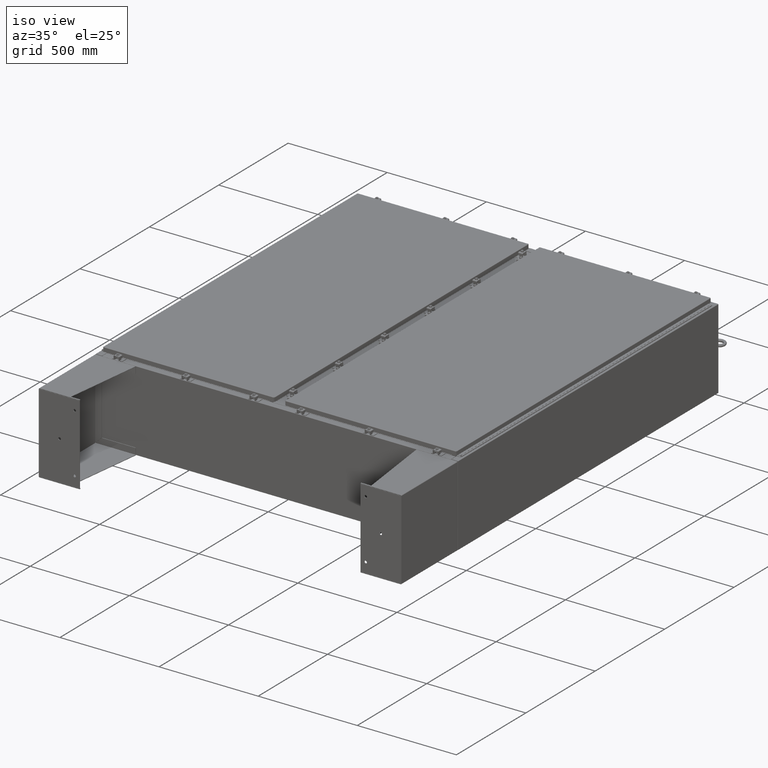
[diagram: clean part render]
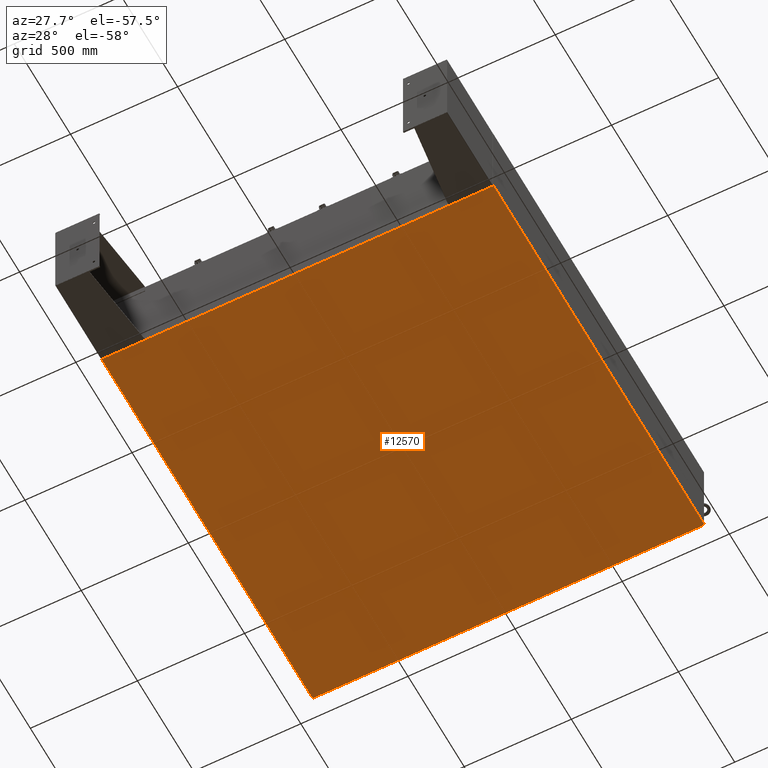
[diagram: tour spotlight — one face highlighted and labeled with its STEP entity id]
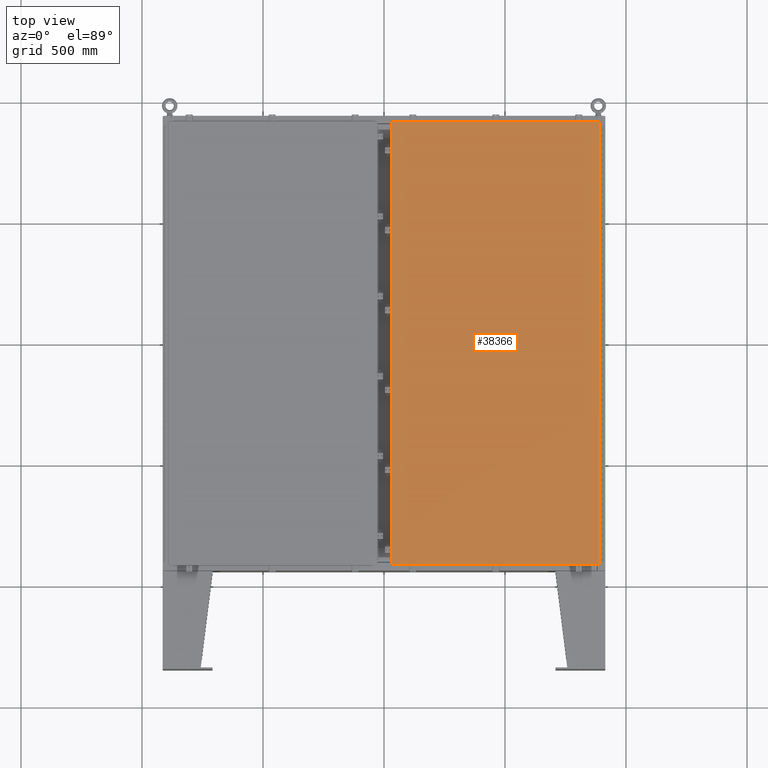
[diagram: tour spotlight — one face highlighted and labeled with its STEP entity id]
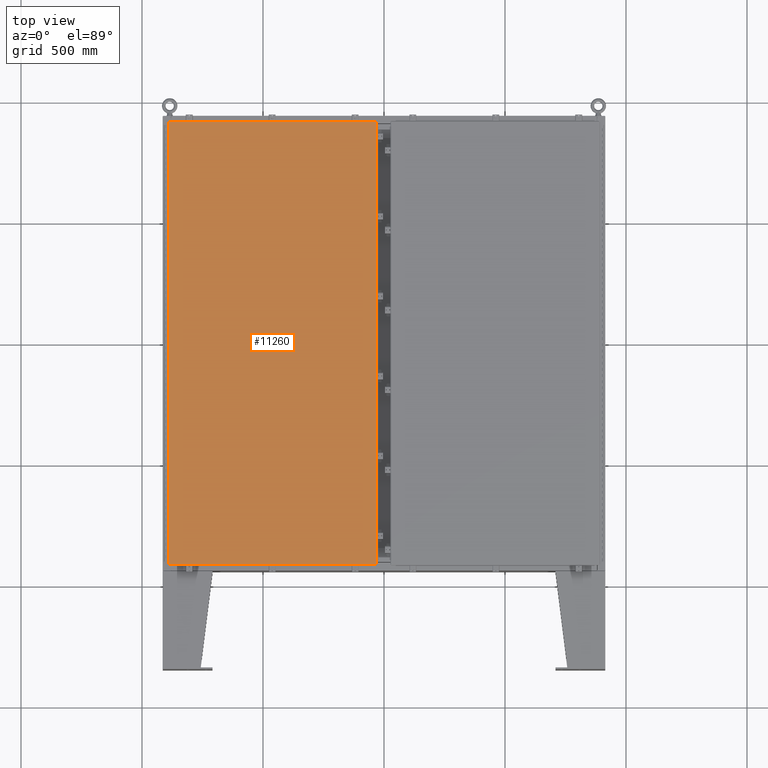
[diagram: tour spotlight — one face highlighted and labeled with its STEP entity id]
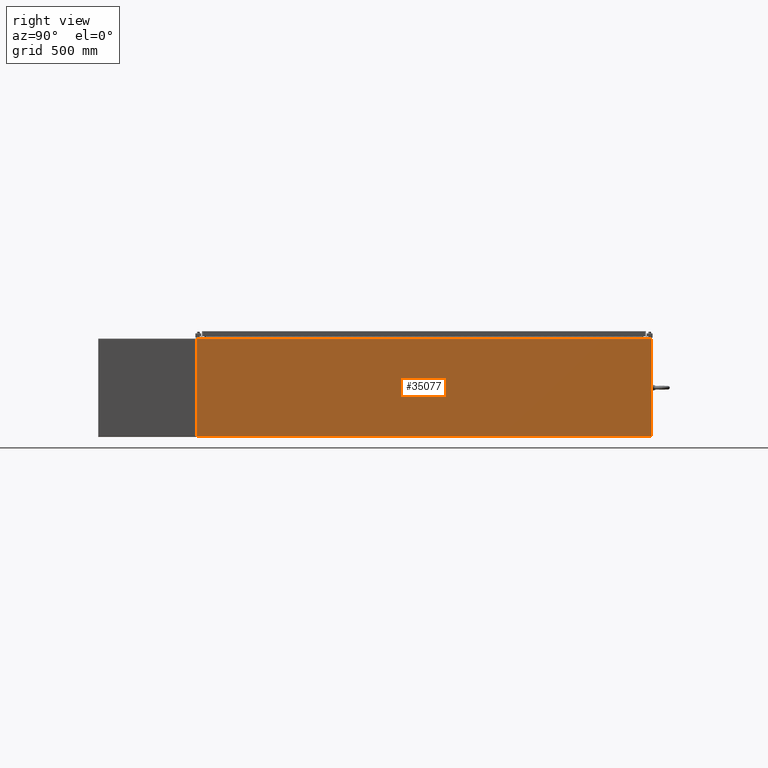
[diagram: tour spotlight — one face highlighted and labeled with its STEP entity id]
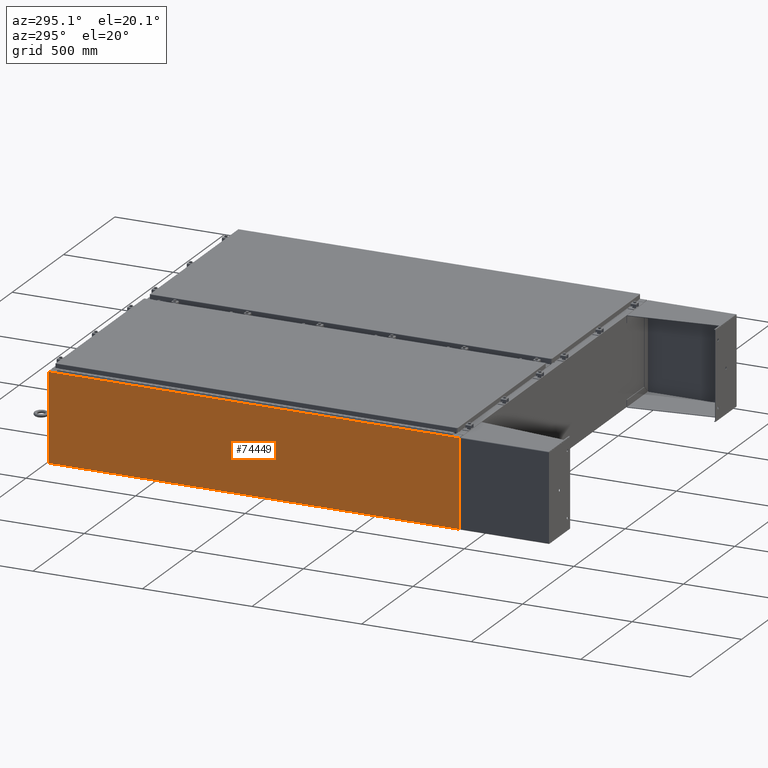
[diagram: tour spotlight — one face highlighted and labeled with its STEP entity id]
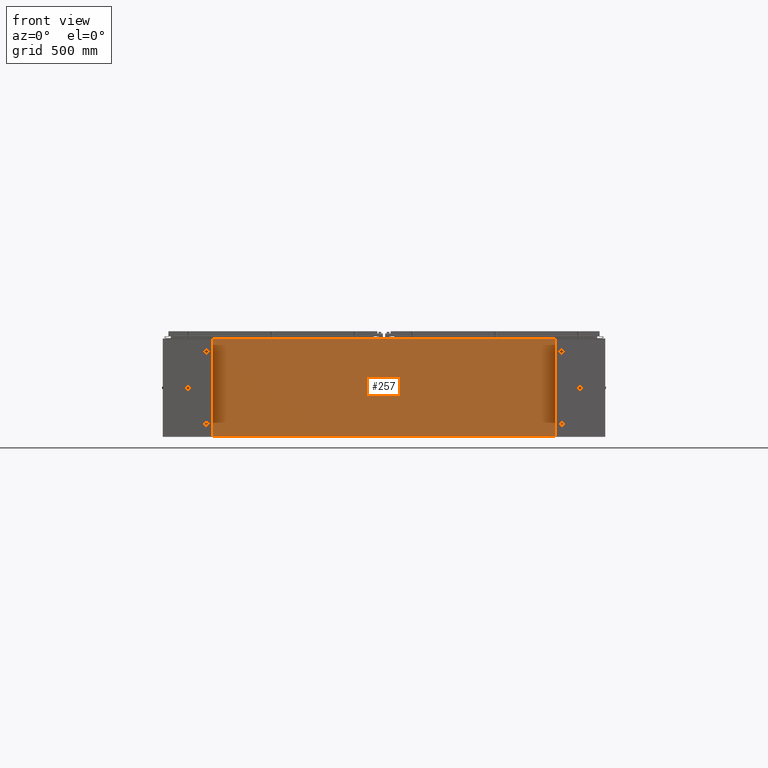
[diagram: tour spotlight — one face highlighted and labeled with its STEP entity id]
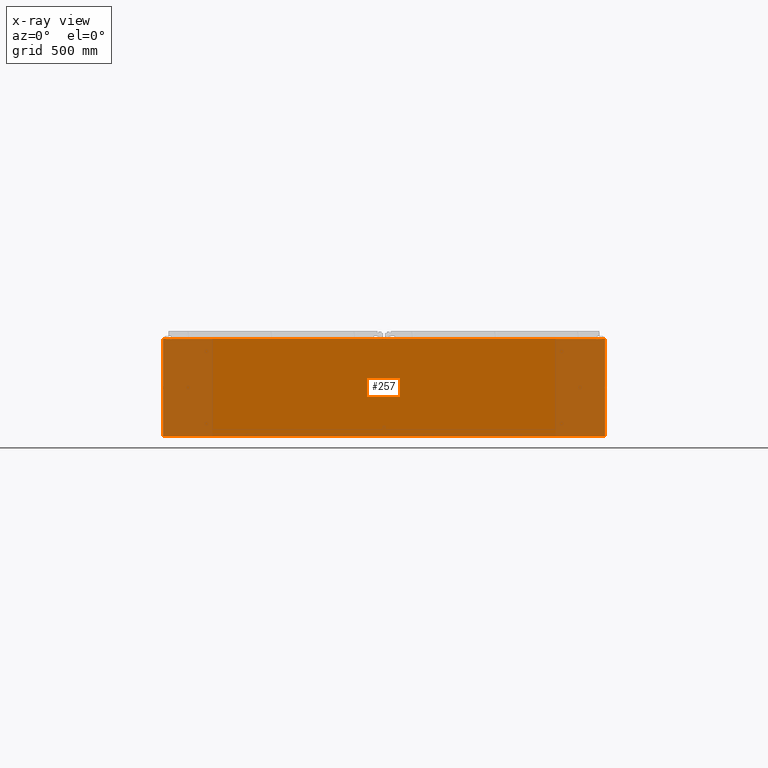
[diagram: x-ray of the same camera — body ghosted, this tour face saturated]
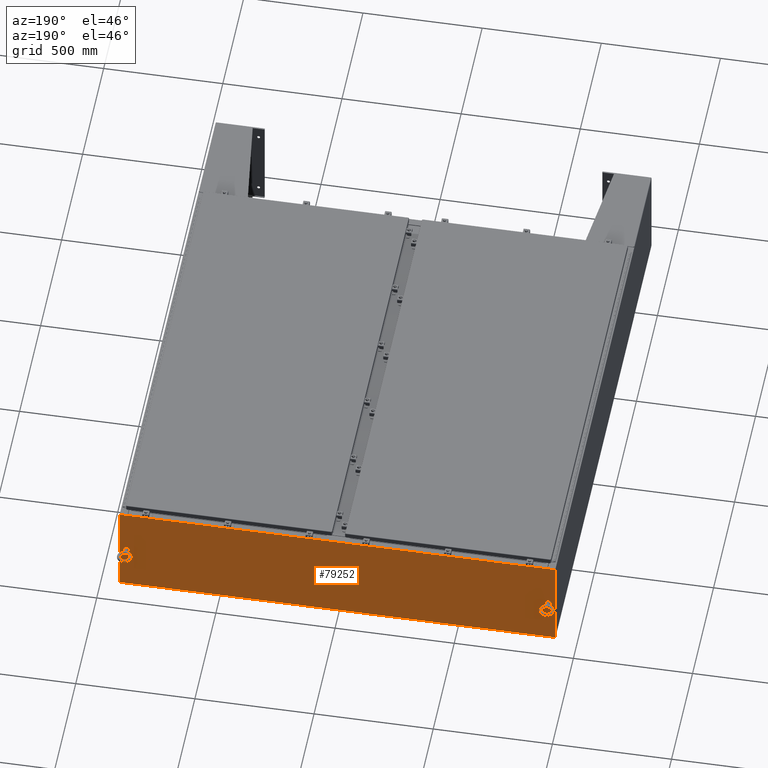
[diagram: tour spotlight — one face highlighted and labeled with its STEP entity id]
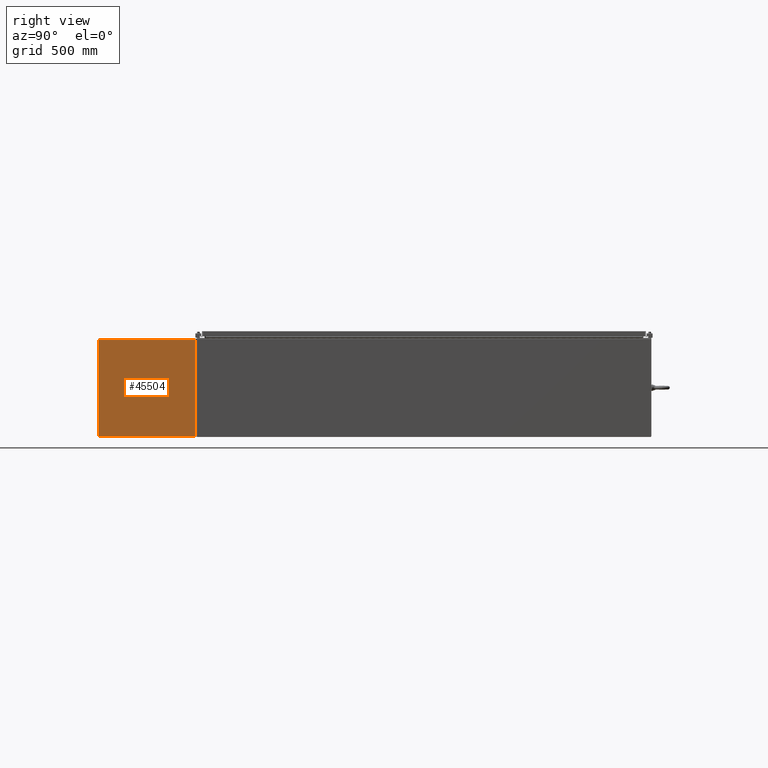
[diagram: tour spotlight — one face highlighted and labeled with its STEP entity id]
A machine part: a face-by-face anatomy tour. The part has 7640 B-rep faces; the first image is the clean iso view, then the 8 largest visible faces are spotlighted one at a time (largest first), each with its STEP entity span.

Face 1 — auxiliary view, entity #12570. In plain terms, the highlighted planar face has unit normal (0, 0, -1).
Definition (entity closure, byte-faithful):
#3493 = EDGE_CURVE ( 'NONE', #23384, #54898, #8824, .T. ) ;
#3610 = ORIENTED_EDGE ( 'NONE', *, *, #64631, .F. ) ;
#8824 = LINE ( 'NONE', #56169, #36478 ) ;
#10795 = EDGE_CURVE ( 'NONE', #66061, #54898, #27178, .T. ) ;
#12570 = ADVANCED_FACE ( 'NONE', ( #16072 ), #39025, .T. ) ;
#13029 = VECTOR ( 'NONE', #21981, 39.37007874015748100 ) ;
#15867 = DIRECTION ( 'NONE',  ( -1.000000000000000000, -0.0000000000000000000, -0.0000000000000000000 ) ) ;
#16072 = FACE_OUTER_BOUND ( 'NONE', #42501, .T. ) ;
#17949 = CARTESIAN_POINT ( 'NONE',  ( -35.91229999999999500, 36.92529999999999300, -0.07470000000000000300 ) ) ;
#19491 = CARTESIAN_POINT ( 'NONE',  ( 35.91230000000001600, 36.92529999999999300, -0.07469999999999994700 ) ) ;
#21643 = ORIENTED_EDGE ( 'NONE', *, *, #10795, .F. ) ;
#21981 = DIRECTION ( 'NONE',  ( 1.000000000000000000, 0.0000000000000000000, 0.0000000000000000000 ) ) ;
#23384 = VERTEX_POINT ( 'NONE', #65533 ) ;
#24544 = DIRECTION ( 'NONE',  ( 0.0000000000000000000, 0.0000000000000000000, -1.000000000000000000 ) ) ;
#27178 = LINE ( 'NONE', #76754, #58713 ) ;
#29747 = AXIS2_PLACEMENT_3D ( 'NONE', #53732, #24544, #47712 ) ;
#32375 = LINE ( 'NONE', #19491, #80545 ) ;
#33356 = ORIENTED_EDGE ( 'NONE', *, *, #3493, .T. ) ;
#35234 = CARTESIAN_POINT ( 'NONE',  ( 35.91230000000001600, 36.92529999999999300, -0.07469999999999994700 ) ) ;
#36478 = VECTOR ( 'NONE', #64100, 39.37007874015748100 ) ;
#39025 = PLANE ( 'NONE',  #29747 ) ;
#40136 = CARTESIAN_POINT ( 'NONE',  ( 35.91230000000001600, -36.92530000000000000, -0.07470000000000000300 ) ) ;
#40699 = CARTESIAN_POINT ( 'NONE',  ( -35.99999999999998600, -36.92530000000000000, -0.07470000000000000300 ) ) ;
#42501 = EDGE_LOOP ( 'NONE', ( #3610, #33356, #21643, #73853 ) ) ;
#47712 = DIRECTION ( 'NONE',  ( -1.000000000000000000, 0.0000000000000000000, -0.0000000000000000000 ) ) ;
#48517 = LINE ( 'NONE', #40699, #13029 ) ;
#53732 = CARTESIAN_POINT ( 'NONE',  ( 0.0000000000000000000, 0.0000000000000000000, -0.07470000000000000300 ) ) ;
#54898 = VERTEX_POINT ( 'NONE', #17949 ) ;
#56169 = CARTESIAN_POINT ( 'NONE',  ( -35.91229999999999500, -36.92529999999999300, -0.07469999999999994700 ) ) ;
#57142 = DIRECTION ( 'NONE',  ( -0.0000000000000000000, -1.000000000000000000, -0.0000000000000000000 ) ) ;
#58713 = VECTOR ( 'NONE', #15867, 39.37007874015748100 ) ;
#59876 = VERTEX_POINT ( 'NONE', #40136 ) ;
#64100 = DIRECTION ( 'NONE',  ( -0.0000000000000000000, 1.000000000000000000, -0.0000000000000000000 ) ) ;
#64631 = EDGE_CURVE ( 'NONE', #23384, #59876, #48517, .T. ) ;
#65533 = CARTESIAN_POINT ( 'NONE',  ( -35.91229999999999500, -36.92529999999999300, -0.07469999999999994700 ) ) ;
#66061 = VERTEX_POINT ( 'NONE', #35234 ) ;
#72785 = EDGE_CURVE ( 'NONE', #66061, #59876, #32375, .T. ) ;
#73853 = ORIENTED_EDGE ( 'NONE', *, *, #72785, .T. ) ;
#76754 = CARTESIAN_POINT ( 'NONE',  ( -35.99999999999998600, 36.92530000000000000, -0.07470000000000000300 ) ) ;
#80545 = VECTOR ( 'NONE', #57142, 39.37007874015748100 ) ;

Face 2 — top view, entity #38366. In plain terms, the highlighted planar face has unit normal (0, 0, -1).
Definition (entity closure, byte-faithful):
#2172 = EDGE_CURVE ( 'NONE', #34363, #64235, #79572, .T. ) ;
#3271 = CARTESIAN_POINT ( 'NONE',  ( -16.91780000000000000, -36.01820000000000000, 2.185478394931410600E-015 ) ) ;
#3979 = CARTESIAN_POINT ( 'NONE',  ( 16.91780000000000300, -36.01820000000000000, 0.0000000000000000000 ) ) ;
#5596 = DIRECTION ( 'NONE',  ( -1.000000000000000000, 0.0000000000000000000, -0.0000000000000000000 ) ) ;
#5692 = DIRECTION ( 'NONE',  ( 0.0000000000000000000, 0.0000000000000000000, -1.000000000000000000 ) ) ;
#5871 = CARTESIAN_POINT ( 'NONE',  ( 0.0000000000000000000, 0.0000000000000000000, 0.0000000000000000000 ) ) ;
#6145 = PLANE ( 'NONE',  #6263 ) ;
#6167 = CARTESIAN_POINT ( 'NONE',  ( -16.91780000000000000, -36.01820000000000000, 2.185478394931410600E-015 ) ) ;
#6263 = AXIS2_PLACEMENT_3D ( 'NONE', #5871, #5692, #5596 ) ;
#9368 = EDGE_CURVE ( 'NONE', #64235, #66268, #70761, .T. ) ;
#12690 = EDGE_LOOP ( 'NONE', ( #39195, #13293, #30516, #52504 ) ) ;
#13282 = CARTESIAN_POINT ( 'NONE',  ( 16.91780000000000000, 36.01820000000000000, 2.185478394931410600E-015 ) ) ;
#13293 = ORIENTED_EDGE ( 'NONE', *, *, #57177, .T. ) ;
#14905 = DIRECTION ( 'NONE',  ( 0.0000000000000000000, -1.000000000000000000, 0.0000000000000000000 ) ) ;
#15107 = EDGE_CURVE ( 'NONE', #66268, #42173, #77315, .T. ) ;
#16121 = DIRECTION ( 'NONE',  ( 1.000000000000000000, -0.0000000000000000000, -0.0000000000000000000 ) ) ;
#16813 = LINE ( 'NONE', #49216, #79779 ) ;
#27017 = VECTOR ( 'NONE', #16121, 39.37007874015748100 ) ;
#30042 = CARTESIAN_POINT ( 'NONE',  ( -16.91780000000000300, 36.01820000000000000, 0.0000000000000000000 ) ) ;
#30516 = ORIENTED_EDGE ( 'NONE', *, *, #2172, .T. ) ;
#31376 = CARTESIAN_POINT ( 'NONE',  ( -16.91780000000000300, 36.01820000000000000, 0.0000000000000000000 ) ) ;
#34363 = VERTEX_POINT ( 'NONE', #13282 ) ;
#38366 = ADVANCED_FACE ( 'NONE', ( #67235 ), #6145, .F. ) ;
#39115 = DIRECTION ( 'NONE',  ( -1.000000000000000000, -0.0000000000000000000, -0.0000000000000000000 ) ) ;
#39180 = CARTESIAN_POINT ( 'NONE',  ( 16.91780000000000000, 36.01820000000000000, 2.185478394931410600E-015 ) ) ;
#39195 = ORIENTED_EDGE ( 'NONE', *, *, #15107, .T. ) ;
#42173 = VERTEX_POINT ( 'NONE', #3979 ) ;
#49216 = CARTESIAN_POINT ( 'NONE',  ( 16.91780000000000300, -36.01820000000000000, 0.0000000000000000000 ) ) ;
#52504 = ORIENTED_EDGE ( 'NONE', *, *, #9368, .T. ) ;
#53825 = VECTOR ( 'NONE', #14905, 39.37007874015748100 ) ;
#55760 = DIRECTION ( 'NONE',  ( 0.0000000000000000000, 1.000000000000000000, 0.0000000000000000000 ) ) ;
#57177 = EDGE_CURVE ( 'NONE', #42173, #34363, #16813, .T. ) ;
#64235 = VERTEX_POINT ( 'NONE', #30042 ) ;
#66268 = VERTEX_POINT ( 'NONE', #6167 ) ;
#67235 = FACE_OUTER_BOUND ( 'NONE', #12690, .T. ) ;
#70761 = LINE ( 'NONE', #31376, #53825 ) ;
#77315 = LINE ( 'NONE', #3271, #27017 ) ;
#77591 = VECTOR ( 'NONE', #39115, 39.37007874015748100 ) ;
#79572 = LINE ( 'NONE', #39180, #77591 ) ;
#79779 = VECTOR ( 'NONE', #55760, 39.37007874015748100 ) ;

Face 3 — top view, entity #11260. In plain terms, the highlighted planar face has unit normal (0, 0, -1).
Definition (entity closure, byte-faithful):
#705 = CARTESIAN_POINT ( 'NONE',  ( 0.0000000000000000000, 0.0000000000000000000, 0.0000000000000000000 ) ) ;
#1235 = LINE ( 'NONE', #78721, #66480 ) ;
#1942 = VERTEX_POINT ( 'NONE', #81654 ) ;
#5646 = VECTOR ( 'NONE', #34307, 39.37007874015748100 ) ;
#7643 = VERTEX_POINT ( 'NONE', #41279 ) ;
#10863 = LINE ( 'NONE', #54415, #42395 ) ;
#11260 = ADVANCED_FACE ( 'NONE', ( #73491 ), #29335, .F. ) ;
#11493 = CARTESIAN_POINT ( 'NONE',  ( -16.91780000000000000, 36.01820000000000000, 0.0000000000000000000 ) ) ;
#14839 = DIRECTION ( 'NONE',  ( -1.000000000000000000, -0.0000000000000000000, -0.0000000000000000000 ) ) ;
#15990 = DIRECTION ( 'NONE',  ( 0.0000000000000000000, -1.000000000000000000, 0.0000000000000000000 ) ) ;
#19330 = EDGE_CURVE ( 'NONE', #1942, #37925, #55998, .T. ) ;
#21247 = EDGE_LOOP ( 'NONE', ( #80827, #80230, #45527, #74217 ) ) ;
#21991 = VECTOR ( 'NONE', #14839, 39.37007874015748100 ) ;
#24380 = CARTESIAN_POINT ( 'NONE',  ( 16.91780000000000300, -36.01820000000000000, 0.0000000000000000000 ) ) ;
#29335 = PLANE ( 'NONE',  #72982 ) ;
#34307 = DIRECTION ( 'NONE',  ( 1.000000000000000000, -0.0000000000000000000, -0.0000000000000000000 ) ) ;
#34502 = CARTESIAN_POINT ( 'NONE',  ( -16.91780000000000000, -36.01820000000000000, 2.185478394931410600E-015 ) ) ;
#36774 = LINE ( 'NONE', #46187, #21991 ) ;
#37925 = VERTEX_POINT ( 'NONE', #24380 ) ;
#41279 = CARTESIAN_POINT ( 'NONE',  ( 16.91780000000000300, 36.01820000000000000, 2.185478394931410600E-015 ) ) ;
#42395 = VECTOR ( 'NONE', #73806, 39.37007874015748100 ) ;
#44180 = EDGE_CURVE ( 'NONE', #37925, #7643, #10863, .T. ) ;
#45527 = ORIENTED_EDGE ( 'NONE', *, *, #52857, .T. ) ;
#46187 = CARTESIAN_POINT ( 'NONE',  ( 16.91780000000000300, 36.01820000000000000, 2.185478394931410600E-015 ) ) ;
#52444 = EDGE_CURVE ( 'NONE', #79877, #1942, #1235, .T. ) ;
#52857 = EDGE_CURVE ( 'NONE', #7643, #79877, #36774, .T. ) ;
#54415 = CARTESIAN_POINT ( 'NONE',  ( 16.91780000000000300, -36.01820000000000000, 0.0000000000000000000 ) ) ;
#55679 = DIRECTION ( 'NONE',  ( 0.0000000000000000000, 0.0000000000000000000, -1.000000000000000000 ) ) ;
#55998 = LINE ( 'NONE', #34502, #5646 ) ;
#66480 = VECTOR ( 'NONE', #15990, 39.37007874015748100 ) ;
#72982 = AXIS2_PLACEMENT_3D ( 'NONE', #705, #55679, #77569 ) ;
#73491 = FACE_OUTER_BOUND ( 'NONE', #21247, .T. ) ;
#73806 = DIRECTION ( 'NONE',  ( 0.0000000000000000000, 1.000000000000000000, 0.0000000000000000000 ) ) ;
#74217 = ORIENTED_EDGE ( 'NONE', *, *, #52444, .T. ) ;
#77569 = DIRECTION ( 'NONE',  ( -1.000000000000000000, 0.0000000000000000000, -0.0000000000000000000 ) ) ;
#78721 = CARTESIAN_POINT ( 'NONE',  ( -16.91780000000000000, 36.01820000000000000, 0.0000000000000000000 ) ) ;
#79877 = VERTEX_POINT ( 'NONE', #11493 ) ;
#80230 = ORIENTED_EDGE ( 'NONE', *, *, #44180, .T. ) ;
#80827 = ORIENTED_EDGE ( 'NONE', *, *, #19330, .T. ) ;
#81654 = CARTESIAN_POINT ( 'NONE',  ( -16.91780000000000000, -36.01820000000000000, 2.185478394931410600E-015 ) ) ;

Face 4 — right view, entity #35077. In plain terms, the highlighted planar face has unit normal (-1, -0, 0).
Definition (entity closure, byte-faithful):
#3249 = CARTESIAN_POINT ( 'NONE',  ( 36.00000000000008500, 36.92530000000000000, 15.83760000000000400 ) ) ;
#4414 = DIRECTION ( 'NONE',  ( 3.584876173029203700E-015, 2.757597056176310300E-016, 1.000000000000000000 ) ) ;
#6287 = DIRECTION ( 'NONE',  ( 1.060880944049164600E-031, -1.000000000000000000, -3.704046018881944000E-046 ) ) ;
#13245 = CARTESIAN_POINT ( 'NONE',  ( 36.00000000000008500, 36.92529999999999300, 15.83760000000000400 ) ) ;
#16216 = ORIENTED_EDGE ( 'NONE', *, *, #64815, .T. ) ;
#24065 = EDGE_CURVE ( 'NONE', #44461, #46632, #37822, .T. ) ;
#29084 = VERTEX_POINT ( 'NONE', #49798 ) ;
#33735 = CARTESIAN_POINT ( 'NONE',  ( 36.00000000000000700, 36.92529999999999300, -1.394988657429056600E-013 ) ) ;
#33974 = FACE_OUTER_BOUND ( 'NONE', #41923, .T. ) ;
#34113 = AXIS2_PLACEMENT_3D ( 'NONE', #48304, #46976, #46894 ) ;
#35077 = ADVANCED_FACE ( 'NONE', ( #33974 ), #47819, .F. ) ;
#35829 = VECTOR ( 'NONE', #4414, 39.37007874015748100 ) ;
#37396 = DIRECTION ( 'NONE',  ( -3.584876173029203700E-015, 2.757597056176310700E-016, -1.000000000000000000 ) ) ;
#37822 = LINE ( 'NONE', #33735, #35829 ) ;
#41416 = VECTOR ( 'NONE', #6287, 39.37007874015748100 ) ;
#41923 = EDGE_LOOP ( 'NONE', ( #70470, #16216, #59732, #67687 ) ) ;
#43432 = CARTESIAN_POINT ( 'NONE',  ( 36.00000000000000700, -36.92529999999999300, 0.01299999999999765100 ) ) ;
#44461 = VERTEX_POINT ( 'NONE', #75967 ) ;
#46632 = VERTEX_POINT ( 'NONE', #13245 ) ;
#46894 = DIRECTION ( 'NONE',  ( 3.584876173029203700E-015, 0.0000000000000000000, 1.000000000000000000 ) ) ;
#46976 = DIRECTION ( 'NONE',  ( -1.000000000000000000, -1.060880944049164600E-031, 3.584876173029203700E-015 ) ) ;
#47819 = PLANE ( 'NONE',  #34113 ) ;
#48304 = CARTESIAN_POINT ( 'NONE',  ( 36.00000000000000700, 3.819171398576993600E-030, -1.293163558850629600E-013 ) ) ;
#49798 = CARTESIAN_POINT ( 'NONE',  ( 36.00000000000006400, -36.92530000000000000, 15.83759999999999100 ) ) ;
#50500 = CARTESIAN_POINT ( 'NONE',  ( 36.00000000000000700, -36.92529999999999300, 0.01299999999999766100 ) ) ;
#59732 = ORIENTED_EDGE ( 'NONE', *, *, #75271, .F. ) ;
#64779 = VERTEX_POINT ( 'NONE', #43432 ) ;
#64815 = EDGE_CURVE ( 'NONE', #29084, #64779, #66302, .T. ) ;
#66302 = LINE ( 'NONE', #81359, #80918 ) ;
#66973 = EDGE_CURVE ( 'NONE', #46632, #29084, #75741, .T. ) ;
#67687 = ORIENTED_EDGE ( 'NONE', *, *, #24065, .T. ) ;
#70470 = ORIENTED_EDGE ( 'NONE', *, *, #66973, .T. ) ;
#72602 = DIRECTION ( 'NONE',  ( -0.0000000000000000000, -1.000000000000000000, -0.0000000000000000000 ) ) ;
#73032 = LINE ( 'NONE', #50500, #41416 ) ;
#73793 = VECTOR ( 'NONE', #72602, 39.37007874015748100 ) ;
#75271 = EDGE_CURVE ( 'NONE', #44461, #64779, #73032, .T. ) ;
#75741 = LINE ( 'NONE', #3249, #73793 ) ;
#75967 = CARTESIAN_POINT ( 'NONE',  ( 36.00000000000000700, 36.92529999999999300, 0.01299999999999766100 ) ) ;
#80918 = VECTOR ( 'NONE', #37396, 39.37007874015748100 ) ;
#81359 = CARTESIAN_POINT ( 'NONE',  ( 36.00000000000000700, -36.92529999999999300, -1.394988657429056600E-013 ) ) ;

Face 5 — auxiliary view, entity #74449. In plain terms, the highlighted planar face has unit normal (1, 0, 0).
Definition (entity closure, byte-faithful):
#2194 = VECTOR ( 'NONE', #67251, 39.37007874015748100 ) ;
#5245 = CARTESIAN_POINT ( 'NONE',  ( -35.99999999999998600, -36.92529999999999300, 0.01299999999999766100 ) ) ;
#6234 = LINE ( 'NONE', #66432, #52641 ) ;
#6912 = VERTEX_POINT ( 'NONE', #5245 ) ;
#7856 = VERTEX_POINT ( 'NONE', #55642 ) ;
#13638 = VECTOR ( 'NONE', #49078, 39.37007874015748100 ) ;
#19011 = DIRECTION ( 'NONE',  ( 0.0000000000000000000, 1.000000000000000000, 0.0000000000000000000 ) ) ;
#20364 = EDGE_LOOP ( 'NONE', ( #43345, #60012, #72818, #81526 ) ) ;
#25274 = CARTESIAN_POINT ( 'NONE',  ( -36.00000000000006400, -36.92529999999998600, 15.83759999999998800 ) ) ;
#25699 = VECTOR ( 'NONE', #19011, 39.37007874015748100 ) ;
#29971 = CARTESIAN_POINT ( 'NONE',  ( -35.99999999999998600, 0.0000000000000000000, -1.293163558850628600E-013 ) ) ;
#33642 = CARTESIAN_POINT ( 'NONE',  ( -35.99999999999998600, 36.92529999999999300, 0.01299999999999765100 ) ) ;
#36275 = PLANE ( 'NONE',  #75316 ) ;
#36406 = CARTESIAN_POINT ( 'NONE',  ( -35.99999999999998600, 36.92529999999999300, 0.01299999999999766100 ) ) ;
#41250 = DIRECTION ( 'NONE',  ( -3.584876173029202900E-015, 2.757597056176310300E-016, 1.000000000000000000 ) ) ;
#42598 = DIRECTION ( 'NONE',  ( 3.584876173029202900E-015, 0.0000000000000000000, -1.000000000000000000 ) ) ;
#43345 = ORIENTED_EDGE ( 'NONE', *, *, #56753, .T. ) ;
#44092 = VERTEX_POINT ( 'NONE', #78944 ) ;
#47112 = LINE ( 'NONE', #36406, #13638 ) ;
#47797 = FACE_OUTER_BOUND ( 'NONE', #20364, .T. ) ;
#49078 = DIRECTION ( 'NONE',  ( -0.0000000000000000000, 1.000000000000000000, -0.0000000000000000000 ) ) ;
#52566 = LINE ( 'NONE', #60830, #2194 ) ;
#52641 = VECTOR ( 'NONE', #41250, 39.37007874015748100 ) ;
#55642 = CARTESIAN_POINT ( 'NONE',  ( -36.00000000000006400, -36.92529999999998600, 15.83759999999998800 ) ) ;
#56753 = EDGE_CURVE ( 'NONE', #7856, #44092, #76031, .T. ) ;
#59113 = EDGE_CURVE ( 'NONE', #6912, #70686, #47112, .T. ) ;
#60012 = ORIENTED_EDGE ( 'NONE', *, *, #62804, .T. ) ;
#60830 = CARTESIAN_POINT ( 'NONE',  ( -35.99999999999998600, 36.92529999999999300, -1.293163558850628600E-013 ) ) ;
#62804 = EDGE_CURVE ( 'NONE', #44092, #70686, #52566, .T. ) ;
#66432 = CARTESIAN_POINT ( 'NONE',  ( -35.99999999999998600, -36.92529999999999300, -1.191338460272201400E-013 ) ) ;
#67251 = DIRECTION ( 'NONE',  ( 3.584876173029202900E-015, 0.0000000000000000000, -1.000000000000000000 ) ) ;
#70686 = VERTEX_POINT ( 'NONE', #33642 ) ;
#72818 = ORIENTED_EDGE ( 'NONE', *, *, #59113, .F. ) ;
#74449 = ADVANCED_FACE ( 'NONE', ( #47797 ), #36275, .F. ) ;
#75316 = AXIS2_PLACEMENT_3D ( 'NONE', #29971, #80267, #42598 ) ;
#76031 = LINE ( 'NONE', #25274, #25699 ) ;
#78944 = CARTESIAN_POINT ( 'NONE',  ( -36.00000000000004300, 36.92529999999997900, 15.83759999999998800 ) ) ;
#79691 = EDGE_CURVE ( 'NONE', #6912, #7856, #6234, .T. ) ;
#80267 = DIRECTION ( 'NONE',  ( 1.000000000000000000, 0.0000000000000000000, 3.584876173029202900E-015 ) ) ;
#81526 = ORIENTED_EDGE ( 'NONE', *, *, #79691, .T. ) ;

Face 6 — front view, entity #257. An x-ray twin of the same camera follows (body ghosted, this face saturated) — the face is partly hidden behind the body. In plain terms, the highlighted planar face has unit normal (-0, 1, 0).
Definition (entity closure, byte-faithful):
#257 = ADVANCED_FACE ( 'NONE', ( #35449 ), #50583, .F. ) ;
#1240 = VECTOR ( 'NONE', #41558, 39.37007874015748100 ) ;
#1401 = VERTEX_POINT ( 'NONE', #12304 ) ;
#4064 = VERTEX_POINT ( 'NONE', #48964 ) ;
#5046 = AXIS2_PLACEMENT_3D ( 'NONE', #54311, #80818, #31408 ) ;
#5241 = VECTOR ( 'NONE', #69946, 39.37007874015748100 ) ;
#5402 = VECTOR ( 'NONE', #81489, 39.37007874015748100 ) ;
#5931 = VERTEX_POINT ( 'NONE', #59028 ) ;
#8069 = CARTESIAN_POINT ( 'NONE',  ( -34.63719999999999300, 3.496765431890256900E-014, 7.912300000000001000 ) ) ;
#8274 = VERTEX_POINT ( 'NONE', #52487 ) ;
#8896 = ORIENTED_EDGE ( 'NONE', *, *, #52993, .F. ) ;
#8952 = ORIENTED_EDGE ( 'NONE', *, *, #28747, .F. ) ;
#10524 = AXIS2_PLACEMENT_3D ( 'NONE', #16860, #28019, #26397 ) ;
#12044 = EDGE_CURVE ( 'NONE', #76002, #73300, #18153, .T. ) ;
#12093 = VECTOR ( 'NONE', #59973, 39.37007874015748100 ) ;
#12304 = CARTESIAN_POINT ( 'NONE',  ( 35.92530000000000700, 0.0000000000000000000, 7.925300000000000900 ) ) ;
#12847 = DIRECTION ( 'NONE',  ( 1.000000000000000000, -9.721131394294625500E-032, 0.0000000000000000000 ) ) ;
#13254 = CARTESIAN_POINT ( 'NONE',  ( 34.67455000000000400, 0.0000000000000000000, 7.874949999999999200 ) ) ;
#14231 = LINE ( 'NONE', #63589, #45718 ) ;
#14997 = CARTESIAN_POINT ( 'NONE',  ( -35.92529999999999300, 0.0000000000000000000, -7.925300000000000000 ) ) ;
#15087 = EDGE_CURVE ( 'NONE', #5931, #47041, #14231, .T. ) ;
#15421 = CARTESIAN_POINT ( 'NONE',  ( -34.63719999999999300, 3.496765431890256900E-014, 7.874949999999999200 ) ) ;
#16350 = CARTESIAN_POINT ( 'NONE',  ( 34.63720000000002100, 0.0000000000000000000, 7.912299999999998300 ) ) ;
#16860 = CARTESIAN_POINT ( 'NONE',  ( 34.65587500000000200, 0.0000000000000000000, 7.874949999999999200 ) ) ;
#17356 = CARTESIAN_POINT ( 'NONE',  ( -35.92529999999999300, 3.496765431890256900E-014, 7.925299999999998200 ) ) ;
#17602 = CARTESIAN_POINT ( 'NONE',  ( 34.67455000000001100, 0.0000000000000000000, 7.925300000000000900 ) ) ;
#18153 = LINE ( 'NONE', #76016, #1240 ) ;
#18870 = CARTESIAN_POINT ( 'NONE',  ( -34.67454999999998900, 3.496765431890256900E-014, 7.925299999999998200 ) ) ;
#19699 = ORIENTED_EDGE ( 'NONE', *, *, #23186, .T. ) ;
#20554 = EDGE_CURVE ( 'NONE', #56215, #8274, #44093, .T. ) ;
#22313 = LINE ( 'NONE', #49198, #5402 ) ;
#22910 = ORIENTED_EDGE ( 'NONE', *, *, #15087, .T. ) ;
#23186 = EDGE_CURVE ( 'NONE', #4064, #5931, #24127, .T. ) ;
#24127 = LINE ( 'NONE', #14997, #5241 ) ;
#26148 = EDGE_CURVE ( 'NONE', #79853, #1401, #35530, .T. ) ;
#26397 = DIRECTION ( 'NONE',  ( 0.0000000000000000000, 0.0000000000000000000, -1.000000000000000000 ) ) ;
#26697 = CARTESIAN_POINT ( 'NONE',  ( -34.65587499999999500, 3.496765431890256900E-014, 7.874949999999999200 ) ) ;
#27857 = CARTESIAN_POINT ( 'NONE',  ( -34.63719999999999300, 0.0000000000000000000, 0.0000000000000000000 ) ) ;
#28019 = DIRECTION ( 'NONE',  ( -9.721131394294625500E-032, 1.000000000000000000, -0.0000000000000000000 ) ) ;
#28747 = EDGE_CURVE ( 'NONE', #38081, #76002, #28876, .T. ) ;
#28876 = CIRCLE ( 'NONE', #71838, 0.01867499999999949400 ) ;
#31408 = DIRECTION ( 'NONE',  ( 0.0000000000000000000, 0.0000000000000000000, -1.000000000000000000 ) ) ;
#32822 = CARTESIAN_POINT ( 'NONE',  ( -34.67454999999998900, 3.496765431890256900E-014, 7.874949999999997500 ) ) ;
#33155 = VECTOR ( 'NONE', #34185, 39.37007874015748100 ) ;
#34043 = LINE ( 'NONE', #8069, #48821 ) ;
#34185 = DIRECTION ( 'NONE',  ( 0.0000000000000000000, 0.0000000000000000000, -1.000000000000000000 ) ) ;
#35258 = ORIENTED_EDGE ( 'NONE', *, *, #50921, .F. ) ;
#35449 = FACE_OUTER_BOUND ( 'NONE', #67289, .T. ) ;
#35530 = LINE ( 'NONE', #72954, #50314 ) ;
#36808 = VECTOR ( 'NONE', #12847, 39.37007874015748100 ) ;
#37867 = ORIENTED_EDGE ( 'NONE', *, *, #26148, .T. ) ;
#38081 = VERTEX_POINT ( 'NONE', #15421 ) ;
#40340 = CARTESIAN_POINT ( 'NONE',  ( 35.92530000000000700, 0.0000000000000000000, 7.925300000000000900 ) ) ;
#41236 = EDGE_CURVE ( 'NONE', #8274, #48128, #22313, .T. ) ;
#41558 = DIRECTION ( 'NONE',  ( 0.0000000000000000000, 0.0000000000000000000, 1.000000000000000000 ) ) ;
#44093 = CIRCLE ( 'NONE', #10524, 0.01867499999999949400 ) ;
#44436 = DIRECTION ( 'NONE',  ( 0.0000000000000000000, 0.0000000000000000000, -1.000000000000000000 ) ) ;
#45718 = VECTOR ( 'NONE', #70691, 39.37007874015748100 ) ;
#47041 = VERTEX_POINT ( 'NONE', #17356 ) ;
#47894 = EDGE_CURVE ( 'NONE', #50964, #48128, #34043, .T. ) ;
#48128 = VERTEX_POINT ( 'NONE', #16350 ) ;
#48821 = VECTOR ( 'NONE', #58497, 39.37007874015748100 ) ;
#48964 = CARTESIAN_POINT ( 'NONE',  ( 35.92530000000000700, -3.496765431890256900E-014, -7.925300000000008900 ) ) ;
#49198 = CARTESIAN_POINT ( 'NONE',  ( 34.63720000000000700, 0.0000000000000000000, -8.741913579725642300E-015 ) ) ;
#49873 = LINE ( 'NONE', #27857, #33155 ) ;
#50314 = VECTOR ( 'NONE', #53808, 39.37007874015748100 ) ;
#50583 = PLANE ( 'NONE',  #5046 ) ;
#50921 = EDGE_CURVE ( 'NONE', #50964, #38081, #49873, .T. ) ;
#50964 = VERTEX_POINT ( 'NONE', #65933 ) ;
#52487 = CARTESIAN_POINT ( 'NONE',  ( 34.63720000000000700, 0.0000000000000000000, 7.874949999999999200 ) ) ;
#52993 = EDGE_CURVE ( 'NONE', #79853, #56215, #79069, .T. ) ;
#53492 = LINE ( 'NONE', #75971, #36808 ) ;
#53513 = EDGE_CURVE ( 'NONE', #1401, #4064, #75142, .T. ) ;
#53808 = DIRECTION ( 'NONE',  ( 1.000000000000000000, -9.721131394294625500E-032, 0.0000000000000000000 ) ) ;
#54311 = CARTESIAN_POINT ( 'NONE',  ( 0.0000000000000000000, 0.0000000000000000000, 0.0000000000000000000 ) ) ;
#56202 = ORIENTED_EDGE ( 'NONE', *, *, #20554, .F. ) ;
#56215 = VERTEX_POINT ( 'NONE', #13254 ) ;
#56294 = ORIENTED_EDGE ( 'NONE', *, *, #12044, .F. ) ;
#58320 = VECTOR ( 'NONE', #65487, 39.37007874015748100 ) ;
#58497 = DIRECTION ( 'NONE',  ( 1.000000000000000000, -9.721131394294625500E-032, 0.0000000000000000000 ) ) ;
#59028 = CARTESIAN_POINT ( 'NONE',  ( -35.92529999999999300, 0.0000000000000000000, -7.925300000000000000 ) ) ;
#59973 = DIRECTION ( 'NONE',  ( -1.736229112160002000E-013, 0.0000000000000000000, -1.000000000000000000 ) ) ;
#63055 = EDGE_CURVE ( 'NONE', #47041, #73300, #53492, .T. ) ;
#63589 = CARTESIAN_POINT ( 'NONE',  ( -35.92529999999999300, 3.496765431890256900E-014, 7.925299999999998200 ) ) ;
#65487 = DIRECTION ( 'NONE',  ( 0.0000000000000000000, 0.0000000000000000000, -1.000000000000000000 ) ) ;
#65933 = CARTESIAN_POINT ( 'NONE',  ( -34.63719999999999300, 3.496765431890256900E-014, 7.912300000000001000 ) ) ;
#67289 = EDGE_LOOP ( 'NONE', ( #56294, #8952, #35258, #78731, #81002, #56202, #8896, #37867, #77712, #19699, #22910, #71513 ) ) ;
#67707 = DIRECTION ( 'NONE',  ( -9.721131394294625500E-032, 1.000000000000000000, -0.0000000000000000000 ) ) ;
#69946 = DIRECTION ( 'NONE',  ( -1.000000000000000000, 9.721131394294625500E-032, 0.0000000000000000000 ) ) ;
#70691 = DIRECTION ( 'NONE',  ( 0.0000000000000000000, 0.0000000000000000000, 1.000000000000000000 ) ) ;
#71513 = ORIENTED_EDGE ( 'NONE', *, *, #63055, .T. ) ;
#71838 = AXIS2_PLACEMENT_3D ( 'NONE', #26697, #67707, #44436 ) ;
#72434 = CARTESIAN_POINT ( 'NONE',  ( 34.67454999999863900, 0.0000000000000000000, -6.020992978036035900E-012 ) ) ;
#72954 = CARTESIAN_POINT ( 'NONE',  ( -35.92529999999999300, 3.496765431890256900E-014, 7.925299999999998200 ) ) ;
#73300 = VERTEX_POINT ( 'NONE', #18870 ) ;
#75142 = LINE ( 'NONE', #40340, #58320 ) ;
#75971 = CARTESIAN_POINT ( 'NONE',  ( -35.92529999999999300, 3.496765431890256900E-014, 7.925299999999998200 ) ) ;
#76002 = VERTEX_POINT ( 'NONE', #32822 ) ;
#76016 = CARTESIAN_POINT ( 'NONE',  ( -34.67454999999998900, 0.0000000000000000000, -8.741913579725642300E-015 ) ) ;
#77712 = ORIENTED_EDGE ( 'NONE', *, *, #53513, .T. ) ;
#78731 = ORIENTED_EDGE ( 'NONE', *, *, #47894, .T. ) ;
#79069 = LINE ( 'NONE', #72434, #12093 ) ;
#79853 = VERTEX_POINT ( 'NONE', #17602 ) ;
#80818 = DIRECTION ( 'NONE',  ( 9.721131394294625500E-032, -1.000000000000000000, 0.0000000000000000000 ) ) ;
#81002 = ORIENTED_EDGE ( 'NONE', *, *, #41236, .F. ) ;
#81489 = DIRECTION ( 'NONE',  ( 0.0000000000000000000, 0.0000000000000000000, 1.000000000000000000 ) ) ;

Face 7 — auxiliary view, entity #79252. In plain terms, the highlighted planar face has unit normal (0, -1, 0).
Definition (entity closure, byte-faithful):
#401 = FACE_BOUND ( 'NONE', #63564, .T. ) ;
#437 = VECTOR ( 'NONE', #8727, 39.37007874015748100 ) ;
#591 = EDGE_LOOP ( 'NONE', ( #78410, #59107 ) ) ;
#2136 = AXIS2_PLACEMENT_3D ( 'NONE', #43405, #42846, #39542 ) ;
#2997 = AXIS2_PLACEMENT_3D ( 'NONE', #26683, #70869, #33044 ) ;
#3374 = VERTEX_POINT ( 'NONE', #4627 ) ;
#3459 = EDGE_CURVE ( 'NONE', #72650, #33381, #15764, .T. ) ;
#4530 = VECTOR ( 'NONE', #32265, 39.37007874015748100 ) ;
#4627 = CARTESIAN_POINT ( 'NONE',  ( -34.63719999999999300, 0.0000000000000000000, 7.912299999999999200 ) ) ;
#4854 = VERTEX_POINT ( 'NONE', #7736 ) ;
#5381 = CARTESIAN_POINT ( 'NONE',  ( 0.0000000000000000000, 0.0000000000000000000, 0.0000000000000000000 ) ) ;
#6351 = ORIENTED_EDGE ( 'NONE', *, *, #68238, .F. ) ;
#6709 = VECTOR ( 'NONE', #48264, 39.37007874015748100 ) ;
#7002 = CARTESIAN_POINT ( 'NONE',  ( -34.63719999999999300, 0.0000000000000000000, 7.874950000000001000 ) ) ;
#7599 = EDGE_CURVE ( 'NONE', #33381, #44277, #78822, .T. ) ;
#7647 = CARTESIAN_POINT ( 'NONE',  ( 34.63720000000000700, 0.0000000000000000000, 0.0000000000000000000 ) ) ;
#7688 = VERTEX_POINT ( 'NONE', #45599 ) ;
#7736 = CARTESIAN_POINT ( 'NONE',  ( -34.86329999999998800, 0.0000000000000000000, -0.3750000000000008300 ) ) ;
#8588 = VERTEX_POINT ( 'NONE', #9045 ) ;
#8727 = DIRECTION ( 'NONE',  ( 0.0000000000000000000, 0.0000000000000000000, -1.000000000000000000 ) ) ;
#9045 = CARTESIAN_POINT ( 'NONE',  ( 34.86329999999998800, 0.0000000000000000000, -0.3750000000000008300 ) ) ;
#9090 = VERTEX_POINT ( 'NONE', #44713 ) ;
#9115 = CIRCLE ( 'NONE', #2997, 0.3750000000000008300 ) ;
#10225 = EDGE_CURVE ( 'NONE', #81700, #17811, #80291, .T. ) ;
#11872 = DIRECTION ( 'NONE',  ( 0.0000000000000000000, -0.0000000000000000000, -1.000000000000000000 ) ) ;
#12506 = LINE ( 'NONE', #71634, #77582 ) ;
#12535 = ORIENTED_EDGE ( 'NONE', *, *, #74270, .F. ) ;
#12863 = DIRECTION ( 'NONE',  ( 0.0000000000000000000, 1.000000000000000000, 0.0000000000000000000 ) ) ;
#12869 = VERTEX_POINT ( 'NONE', #27825 ) ;
#13180 = EDGE_CURVE ( 'NONE', #3374, #7688, #41577, .T. ) ;
#14364 = ORIENTED_EDGE ( 'NONE', *, *, #45693, .F. ) ;
#14830 = DIRECTION ( 'NONE',  ( -0.0000000000000000000, 1.000000000000000000, -0.0000000000000000000 ) ) ;
#15764 = LINE ( 'NONE', #18517, #6709 ) ;
#16175 = CIRCLE ( 'NONE', #59208, 0.3750000000000008300 ) ;
#16637 = DIRECTION ( 'NONE',  ( 0.0000000000000000000, 0.0000000000000000000, -1.000000000000000000 ) ) ;
#17312 = FACE_OUTER_BOUND ( 'NONE', #17821, .T. ) ;
#17408 = EDGE_CURVE ( 'NONE', #12869, #59966, #62202, .T. ) ;
#17811 = VERTEX_POINT ( 'NONE', #21801 ) ;
#17821 = EDGE_LOOP ( 'NONE', ( #6351, #49442, #12535, #30114, #29928, #18511, #14364, #50715, #70435, #18932, #66284, #78799 ) ) ;
#18511 = ORIENTED_EDGE ( 'NONE', *, *, #17408, .F. ) ;
#18517 = CARTESIAN_POINT ( 'NONE',  ( -35.92529999999999300, 0.0000000000000000000, 7.925300000000000000 ) ) ;
#18932 = ORIENTED_EDGE ( 'NONE', *, *, #39183, .T. ) ;
#19520 = LINE ( 'NONE', #70067, #4530 ) ;
#21801 = CARTESIAN_POINT ( 'NONE',  ( -34.67454999999998900, 0.0000000000000000000, 7.874950000000001000 ) ) ;
#23446 = VERTEX_POINT ( 'NONE', #81231 ) ;
#24091 = VERTEX_POINT ( 'NONE', #34607 ) ;
#25644 = CARTESIAN_POINT ( 'NONE',  ( -35.92529999999999300, 0.0000000000000000000, 7.925300000000000000 ) ) ;
#25827 = VECTOR ( 'NONE', #43479, 39.37007874015748100 ) ;
#26683 = CARTESIAN_POINT ( 'NONE',  ( 34.86329999999998800, 0.0000000000000000000, 0.0000000000000000000 ) ) ;
#26812 = VECTOR ( 'NONE', #72825, 39.37007874015748100 ) ;
#27554 = CARTESIAN_POINT ( 'NONE',  ( -34.67454999999998900, 0.0000000000000000000, 7.925300000000000000 ) ) ;
#27825 = CARTESIAN_POINT ( 'NONE',  ( 34.67455000000000400, 0.0000000000000000000, 7.874950000000001000 ) ) ;
#27836 = CARTESIAN_POINT ( 'NONE',  ( -34.86329999999998800, 0.0000000000000000000, 0.0000000000000000000 ) ) ;
#27907 = EDGE_CURVE ( 'NONE', #59966, #7688, #78061, .T. ) ;
#29477 = DIRECTION ( 'NONE',  ( -0.0000000000000000000, -0.0000000000000000000, 1.000000000000000000 ) ) ;
#29928 = ORIENTED_EDGE ( 'NONE', *, *, #27907, .F. ) ;
#30114 = ORIENTED_EDGE ( 'NONE', *, *, #13180, .T. ) ;
#31752 = EDGE_CURVE ( 'NONE', #8588, #23446, #67843, .T. ) ;
#32265 = DIRECTION ( 'NONE',  ( -1.736229112160002000E-013, 0.0000000000000000000, -1.000000000000000000 ) ) ;
#32520 = ORIENTED_EDGE ( 'NONE', *, *, #80002, .F. ) ;
#33044 = DIRECTION ( 'NONE',  ( 0.0000000000000000000, 0.0000000000000000000, -1.000000000000000000 ) ) ;
#33381 = VERTEX_POINT ( 'NONE', #58232 ) ;
#34030 = FACE_BOUND ( 'NONE', #591, .T. ) ;
#34110 = CARTESIAN_POINT ( 'NONE',  ( -34.63719999999999300, 0.0000000000000000000, 0.0000000000000000000 ) ) ;
#34161 = DIRECTION ( 'NONE',  ( 0.0000000000000000000, 0.0000000000000000000, 1.000000000000000000 ) ) ;
#34607 = CARTESIAN_POINT ( 'NONE',  ( -35.92529999999999300, 0.0000000000000000000, -7.925300000000000000 ) ) ;
#35399 = CARTESIAN_POINT ( 'NONE',  ( 35.92530000000000700, 0.0000000000000000000, 7.925300000000000000 ) ) ;
#35447 = CARTESIAN_POINT ( 'NONE',  ( -34.65587499999999500, 0.0000000000000000000, 7.874950000000001000 ) ) ;
#35689 = CARTESIAN_POINT ( 'NONE',  ( 34.65587500000000200, 0.0000000000000000000, 7.874950000000001000 ) ) ;
#36421 = EDGE_CURVE ( 'NONE', #24091, #53547, #77164, .T. ) ;
#36957 = PLANE ( 'NONE',  #64022 ) ;
#39183 = EDGE_CURVE ( 'NONE', #44277, #24091, #64148, .T. ) ;
#39542 = DIRECTION ( 'NONE',  ( 0.0000000000000000000, 0.0000000000000000000, -1.000000000000000000 ) ) ;
#40925 = CARTESIAN_POINT ( 'NONE',  ( 34.63720000000000700, 0.0000000000000000000, 7.874950000000001000 ) ) ;
#41370 = CIRCLE ( 'NONE', #77038, 0.3750000000000008300 ) ;
#41577 = LINE ( 'NONE', #74434, #26812 ) ;
#42846 = DIRECTION ( 'NONE',  ( 0.0000000000000000000, 1.000000000000000000, -0.0000000000000000000 ) ) ;
#43405 = CARTESIAN_POINT ( 'NONE',  ( 34.86329999999998800, 0.0000000000000000000, 0.0000000000000000000 ) ) ;
#43479 = DIRECTION ( 'NONE',  ( 0.0000000000000000000, 0.0000000000000000000, 1.000000000000000000 ) ) ;
#44277 = VERTEX_POINT ( 'NONE', #80542 ) ;
#44713 = CARTESIAN_POINT ( 'NONE',  ( -34.86329999999998800, 0.0000000000000000000, 0.3750000000000008300 ) ) ;
#45599 = CARTESIAN_POINT ( 'NONE',  ( 34.63720000000002100, 0.0000000000000000000, 7.912299999999999200 ) ) ;
#45693 = EDGE_CURVE ( 'NONE', #72650, #12869, #19520, .T. ) ;
#46834 = LINE ( 'NONE', #34110, #437 ) ;
#48264 = DIRECTION ( 'NONE',  ( 1.000000000000000000, 0.0000000000000000000, 0.0000000000000000000 ) ) ;
#49442 = ORIENTED_EDGE ( 'NONE', *, *, #10225, .F. ) ;
#49622 = DIRECTION ( 'NONE',  ( 0.0000000000000000000, -1.000000000000000000, 0.0000000000000000000 ) ) ;
#50609 = CARTESIAN_POINT ( 'NONE',  ( -34.86329999999998800, 0.0000000000000000000, 0.0000000000000000000 ) ) ;
#50715 = ORIENTED_EDGE ( 'NONE', *, *, #3459, .T. ) ;
#52508 = DIRECTION ( 'NONE',  ( 1.000000000000000000, 0.0000000000000000000, 0.0000000000000000000 ) ) ;
#52771 = EDGE_CURVE ( 'NONE', #23446, #8588, #9115, .T. ) ;
#53547 = VERTEX_POINT ( 'NONE', #78563 ) ;
#56386 = VERTEX_POINT ( 'NONE', #27554 ) ;
#56878 = DIRECTION ( 'NONE',  ( 0.0000000000000000000, 0.0000000000000000000, 1.000000000000000000 ) ) ;
#57569 = DIRECTION ( 'NONE',  ( 0.0000000000000000000, 0.0000000000000000000, -1.000000000000000000 ) ) ;
#58232 = CARTESIAN_POINT ( 'NONE',  ( 35.92530000000000700, 0.0000000000000000000, 7.925300000000000000 ) ) ;
#58385 = VECTOR ( 'NONE', #29477, 39.37007874015748100 ) ;
#58529 = LINE ( 'NONE', #73500, #60532 ) ;
#59107 = ORIENTED_EDGE ( 'NONE', *, *, #31752, .F. ) ;
#59208 = AXIS2_PLACEMENT_3D ( 'NONE', #50609, #12863, #56878 ) ;
#59590 = DIRECTION ( 'NONE',  ( -0.0000000000000000000, 1.000000000000000000, -0.0000000000000000000 ) ) ;
#59862 = EDGE_CURVE ( 'NONE', #53547, #56386, #12506, .T. ) ;
#59966 = VERTEX_POINT ( 'NONE', #40925 ) ;
#60532 = VECTOR ( 'NONE', #79438, 39.37007874015748100 ) ;
#61386 = CARTESIAN_POINT ( 'NONE',  ( 34.67455000000001100, 0.0000000000000000000, 7.925300000000000000 ) ) ;
#62202 = CIRCLE ( 'NONE', #78424, 0.01867499999999949400 ) ;
#63564 = EDGE_LOOP ( 'NONE', ( #67503, #32520 ) ) ;
#63980 = AXIS2_PLACEMENT_3D ( 'NONE', #35447, #14830, #72428 ) ;
#64022 = AXIS2_PLACEMENT_3D ( 'NONE', #5381, #49622, #11872 ) ;
#64148 = LINE ( 'NONE', #72903, #78779 ) ;
#65930 = EDGE_CURVE ( 'NONE', #9090, #4854, #41370, .T. ) ;
#66284 = ORIENTED_EDGE ( 'NONE', *, *, #36421, .T. ) ;
#67503 = ORIENTED_EDGE ( 'NONE', *, *, #65930, .F. ) ;
#67843 = CIRCLE ( 'NONE', #2136, 0.3750000000000008300 ) ;
#68238 = EDGE_CURVE ( 'NONE', #17811, #56386, #58529, .T. ) ;
#70067 = CARTESIAN_POINT ( 'NONE',  ( 34.67454999999863900, 0.0000000000000000000, -6.019900238838570400E-012 ) ) ;
#70435 = ORIENTED_EDGE ( 'NONE', *, *, #7599, .T. ) ;
#70869 = DIRECTION ( 'NONE',  ( 0.0000000000000000000, 1.000000000000000000, -0.0000000000000000000 ) ) ;
#71634 = CARTESIAN_POINT ( 'NONE',  ( -35.92529999999999300, 0.0000000000000000000, 7.925300000000000000 ) ) ;
#72001 = DIRECTION ( 'NONE',  ( 0.0000000000000000000, 1.000000000000000000, 0.0000000000000000000 ) ) ;
#72428 = DIRECTION ( 'NONE',  ( 0.0000000000000000000, 0.0000000000000000000, -1.000000000000000000 ) ) ;
#72433 = DIRECTION ( 'NONE',  ( -1.000000000000000000, -0.0000000000000000000, -0.0000000000000000000 ) ) ;
#72650 = VERTEX_POINT ( 'NONE', #61386 ) ;
#72825 = DIRECTION ( 'NONE',  ( 1.000000000000000000, 0.0000000000000000000, 0.0000000000000000000 ) ) ;
#72903 = CARTESIAN_POINT ( 'NONE',  ( -35.92529999999999300, 0.0000000000000000000, -7.925300000000000000 ) ) ;
#73500 = CARTESIAN_POINT ( 'NONE',  ( -34.67454999999998900, 0.0000000000000000000, 0.0000000000000000000 ) ) ;
#74270 = EDGE_CURVE ( 'NONE', #3374, #81700, #46834, .T. ) ;
#74434 = CARTESIAN_POINT ( 'NONE',  ( -34.63719999999999300, 0.0000000000000000000, 7.912299999999999200 ) ) ;
#74966 = VECTOR ( 'NONE', #16637, 39.37007874015748100 ) ;
#77038 = AXIS2_PLACEMENT_3D ( 'NONE', #27836, #72001, #34161 ) ;
#77164 = LINE ( 'NONE', #25644, #58385 ) ;
#77582 = VECTOR ( 'NONE', #52508, 39.37007874015748100 ) ;
#78061 = LINE ( 'NONE', #7647, #25827 ) ;
#78410 = ORIENTED_EDGE ( 'NONE', *, *, #52771, .F. ) ;
#78424 = AXIS2_PLACEMENT_3D ( 'NONE', #35689, #59590, #57569 ) ;
#78563 = CARTESIAN_POINT ( 'NONE',  ( -35.92529999999999300, 0.0000000000000000000, 7.925300000000000000 ) ) ;
#78779 = VECTOR ( 'NONE', #72433, 39.37007874015748100 ) ;
#78799 = ORIENTED_EDGE ( 'NONE', *, *, #59862, .T. ) ;
#78822 = LINE ( 'NONE', #35399, #74966 ) ;
#79252 = ADVANCED_FACE ( 'NONE', ( #34030, #401, #17312 ), #36957, .F. ) ;
#79438 = DIRECTION ( 'NONE',  ( 0.0000000000000000000, 0.0000000000000000000, 1.000000000000000000 ) ) ;
#80002 = EDGE_CURVE ( 'NONE', #4854, #9090, #16175, .T. ) ;
#80291 = CIRCLE ( 'NONE', #63980, 0.01867499999999949400 ) ;
#80542 = CARTESIAN_POINT ( 'NONE',  ( 35.92530000000000700, 0.0000000000000000000, -7.925300000000000000 ) ) ;
#81231 = CARTESIAN_POINT ( 'NONE',  ( 34.86329999999998800, 0.0000000000000000000, 0.3750000000000008300 ) ) ;
#81700 = VERTEX_POINT ( 'NONE', #7002 ) ;

Face 8 — right view, entity #45504. In plain terms, the highlighted planar face has unit normal (1, -0, 0).
Definition (entity closure, byte-faithful):
#2382 = CARTESIAN_POINT ( 'NONE',  ( -7.857000000000000200, 7.857000000000068600, -0.1040000000000008600 ) ) ;
#4837 = VECTOR ( 'NONE', #70299, 39.37007874015748100 ) ;
#6122 = VERTEX_POINT ( 'NONE', #71200 ) ;
#16689 = VERTEX_POINT ( 'NONE', #17384 ) ;
#16983 = VECTOR ( 'NONE', #36348, 39.37007874015748100 ) ;
#17384 = CARTESIAN_POINT ( 'NONE',  ( 7.856999999999998400, 7.857000000000064200, -0.1040000000000314600 ) ) ;
#25930 = EDGE_CURVE ( 'NONE', #30555, #16689, #45384, .T. ) ;
#28648 = VECTOR ( 'NONE', #45367, 39.37007874015748100 ) ;
#30025 = CARTESIAN_POINT ( 'NONE',  ( -7.857000000000030400, -7.999999999999923600, -0.1040000000000008600 ) ) ;
#30555 = VERTEX_POINT ( 'NONE', #2382 ) ;
#32183 = VERTEX_POINT ( 'NONE', #61330 ) ;
#32484 = CARTESIAN_POINT ( 'NONE',  ( -8.000000000000030200, -7.999999999999923600, -0.1040000000000008600 ) ) ;
#33717 = LINE ( 'NONE', #30025, #16983 ) ;
#33956 = EDGE_LOOP ( 'NONE', ( #70297, #70517, #74683, #77152 ) ) ;
#34244 = CARTESIAN_POINT ( 'NONE',  ( -7.856999999999995800, 7.857000000000068600, -0.1040000000000008600 ) ) ;
#35278 = FACE_OUTER_BOUND ( 'NONE', #33956, .T. ) ;
#35807 = DIRECTION ( 'NONE',  ( 0.0000000000000000000, -1.000000000000000000, -1.198498701752371100E-031 ) ) ;
#36348 = DIRECTION ( 'NONE',  ( 0.0000000000000000000, 1.000000000000000000, 1.198498701752371100E-031 ) ) ;
#36676 = PLANE ( 'NONE',  #50167 ) ;
#42964 = DIRECTION ( 'NONE',  ( -1.000000000000000000, 0.0000000000000000000, 9.466330862652141700E-029 ) ) ;
#45367 = DIRECTION ( 'NONE',  ( 1.000000000000000000, 0.0000000000000000000, -9.466330862652141700E-029 ) ) ;
#45384 = LINE ( 'NONE', #34244, #28648 ) ;
#45504 = ADVANCED_FACE ( 'NONE', ( #35278 ), #36676, .T. ) ;
#48207 = CARTESIAN_POINT ( 'NONE',  ( 7.856999999999983300, 8.000000000000063900, -0.1039999999999964800 ) ) ;
#50167 = AXIS2_PLACEMENT_3D ( 'NONE', #74429, #80648, #42964 ) ;
#51067 = EDGE_CURVE ( 'NONE', #16689, #6122, #73566, .T. ) ;
#54255 = EDGE_CURVE ( 'NONE', #32183, #30555, #33717, .T. ) ;
#56694 = VECTOR ( 'NONE', #35807, 39.37007874015748100 ) ;
#56849 = EDGE_CURVE ( 'NONE', #32183, #6122, #70169, .T. ) ;
#61330 = CARTESIAN_POINT ( 'NONE',  ( -7.857000000000030400, -7.999999999999932500, -0.1040000000000008600 ) ) ;
#70169 = LINE ( 'NONE', #32484, #4837 ) ;
#70297 = ORIENTED_EDGE ( 'NONE', *, *, #54255, .T. ) ;
#70299 = DIRECTION ( 'NONE',  ( 1.000000000000000000, 0.0000000000000000000, -9.466330862652141700E-029 ) ) ;
#70517 = ORIENTED_EDGE ( 'NONE', *, *, #25930, .T. ) ;
#71200 = CARTESIAN_POINT ( 'NONE',  ( 7.857000000000000200, -7.999999999999993800, -0.1040000000000008600 ) ) ;
#73566 = LINE ( 'NONE', #48207, #56694 ) ;
#74429 = CARTESIAN_POINT ( 'NONE',  ( 7.999999999999984900, 8.000000000000063900, -0.1039999999999964800 ) ) ;
#74683 = ORIENTED_EDGE ( 'NONE', *, *, #51067, .T. ) ;
#77152 = ORIENTED_EDGE ( 'NONE', *, *, #56849, .F. ) ;
#80648 = DIRECTION ( 'NONE',  ( -9.466330862652141700E-029, -1.198498701752819500E-031, -1.000000000000000000 ) ) ;